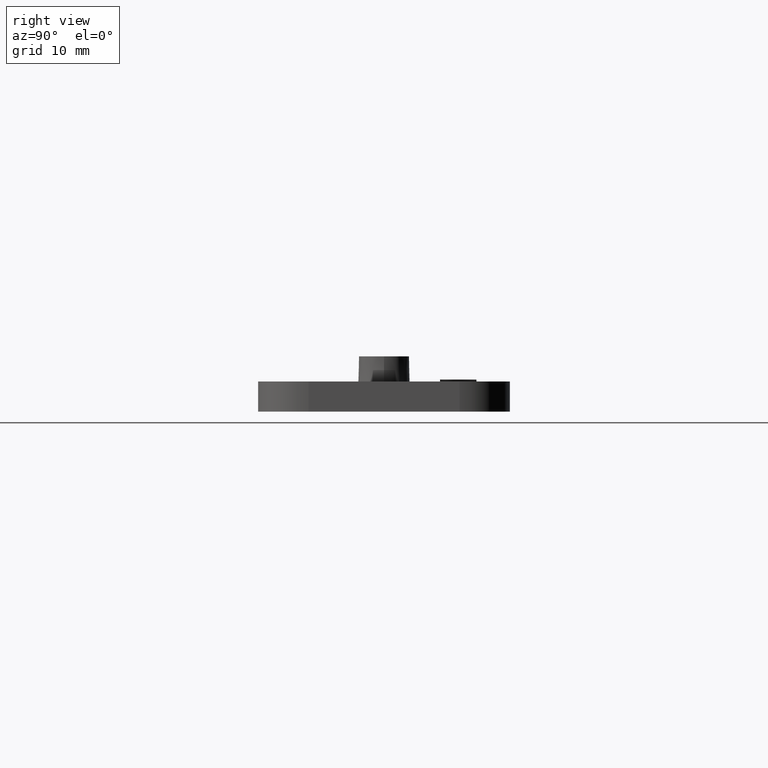
[diagram: clean part render]
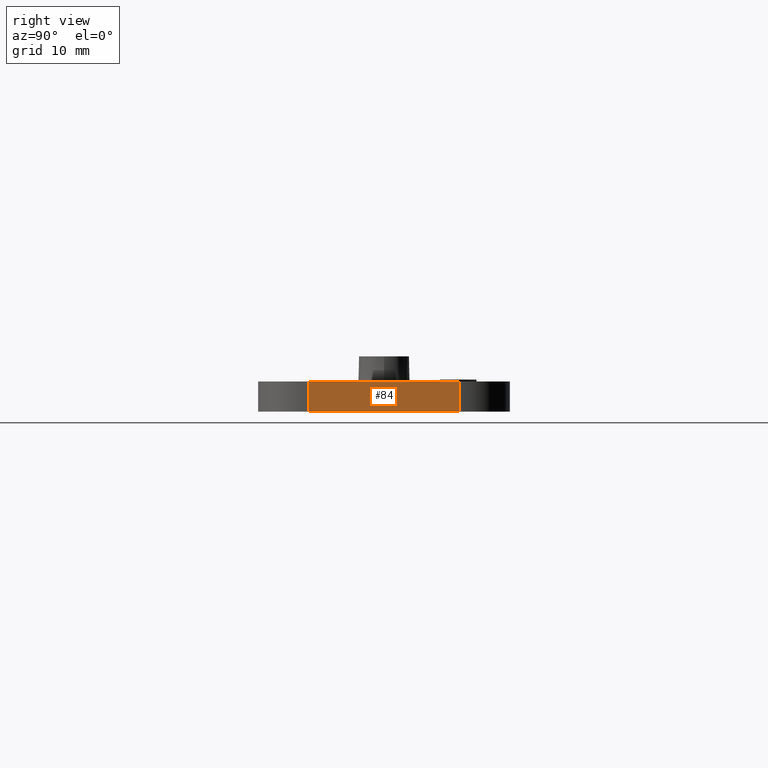
[diagram: same view with one face highlighted and labeled with its STEP entity id]
A machine part, right view. The second image highlights one B-rep face of the part: STEP entity #84.
In plain terms, the highlighted planar face has unit normal (1, -0, -0).
Its self-contained STEP definition (entity closure, byte-faithful):
#84 = ADVANCED_FACE( '', ( #164 ), #165, .T. );
#164 = FACE_OUTER_BOUND( '', #297, .T. );
#165 = PLANE( '', #298 );
#297 = EDGE_LOOP( '', ( #516, #517, #518, #519 ) );
#298 = AXIS2_PLACEMENT_3D( '', #520, #521, #522 );
#516 = ORIENTED_EDGE( '', *, *, #950, .T. );
#517 = ORIENTED_EDGE( '', *, *, #894, .T. );
#518 = ORIENTED_EDGE( '', *, *, #951, .F. );
#519 = ORIENTED_EDGE( '', *, *, #940, .F. );
#520 = CARTESIAN_POINT( '', ( 34.0000000000000, -7.50000000000001, -72.4734112955315 ) );
#521 = DIRECTION( '', ( 1.00000000000000, -1.08450497945135E-031, -1.60751816480226E-016 ) );
#522 = DIRECTION( '', ( 7.92267532763572E-032, 1.00000000000000, -1.81794180051289E-016 ) );
#894 = EDGE_CURVE( '', #1055, #1052, #1056, .T. );
#940 = EDGE_CURVE( '', #1143, #1144, #1145, .T. );
#950 = EDGE_CURVE( '', #1143, #1055, #1159, .T. );
#951 = EDGE_CURVE( '', #1144, #1052, #1160, .T. );
#1052 = VERTEX_POINT( '', #1311 );
#1055 = VERTEX_POINT( '', #1314 );
#1056 = LINE( '', #1315, #1316 );
#1143 = VERTEX_POINT( '', #1441 );
#1144 = VERTEX_POINT( '', #1442 );
#1145 = LINE( '', #1443, #1444 );
#1159 = LINE( '', #1463, #1464 );
#1160 = LINE( '', #1465, #1466 );
#1311 = CARTESIAN_POINT( '', ( 34.0000000000000, -7.50000000000000, 3.00000000000002 ) );
#1314 = CARTESIAN_POINT( '', ( 34.0000000000000, 7.50000000000002, 3.00000000000002 ) );
#1315 = CARTESIAN_POINT( '', ( 34.0000000000000, 1.83690953073359E-016, 3.00000000000002 ) );
#1316 = VECTOR( '', #1672, 1000.00000000000 );
#1441 = CARTESIAN_POINT( '', ( 34.0000000000000, 7.50000000000002, 1.34185604251311E-014 ) );
#1442 = CARTESIAN_POINT( '', ( 34.0000000000000, -7.50000000000000, 1.43370151904978E-014 ) );
#1443 = CARTESIAN_POINT( '', ( 34.0000000000000, 2.08233652073025E-030, 1.38777878078145E-014 ) );
#1444 = VECTOR( '', #1732, 1000.00000000000 );
#1463 = CARTESIAN_POINT( '', ( 34.0000000000000, 7.50000000000000, -72.4734112955315 ) );
#1464 = VECTOR( '', #1750, 1000.00000000000 );
#1465 = CARTESIAN_POINT( '', ( 34.0000000000000, -7.50000000000001, -72.4734112955315 ) );
#1466 = VECTOR( '', #1751, 1000.00000000000 );
#1672 = DIRECTION( '', ( -9.86076131526265E-032, -1.00000000000000, 6.12303176911189E-017 ) );
#1732 = DIRECTION( '', ( -9.86076131526265E-032, -1.00000000000000, 6.12303176911189E-017 ) );
#1750 = DIRECTION( '', ( 1.60751816480226E-016, 1.81794180051289E-016, 1.00000000000000 ) );
#1751 = DIRECTION( '', ( 1.60751816480226E-016, 1.81794180051289E-016, 1.00000000000000 ) );